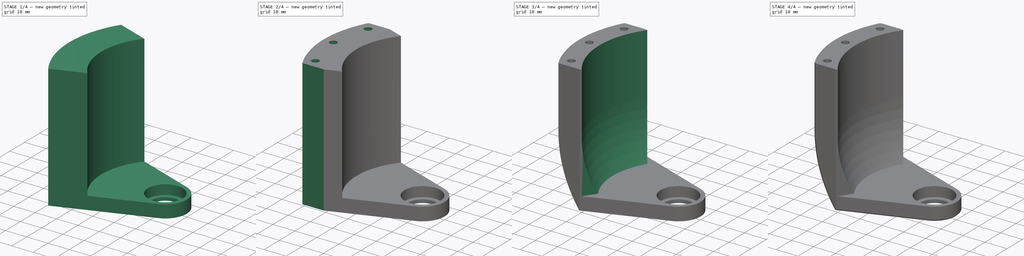
[diagram: build sequence overview — one tinted view per stage of 4, left to right]
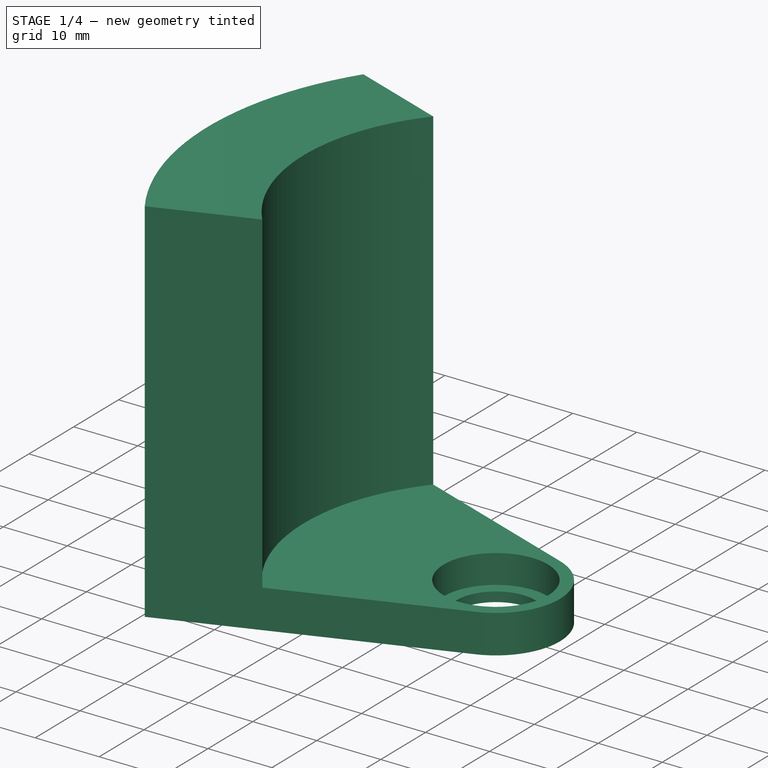
[diagram: stage 1 of 4 — iso view after this stage's code; geometry added in this stage tinted green]
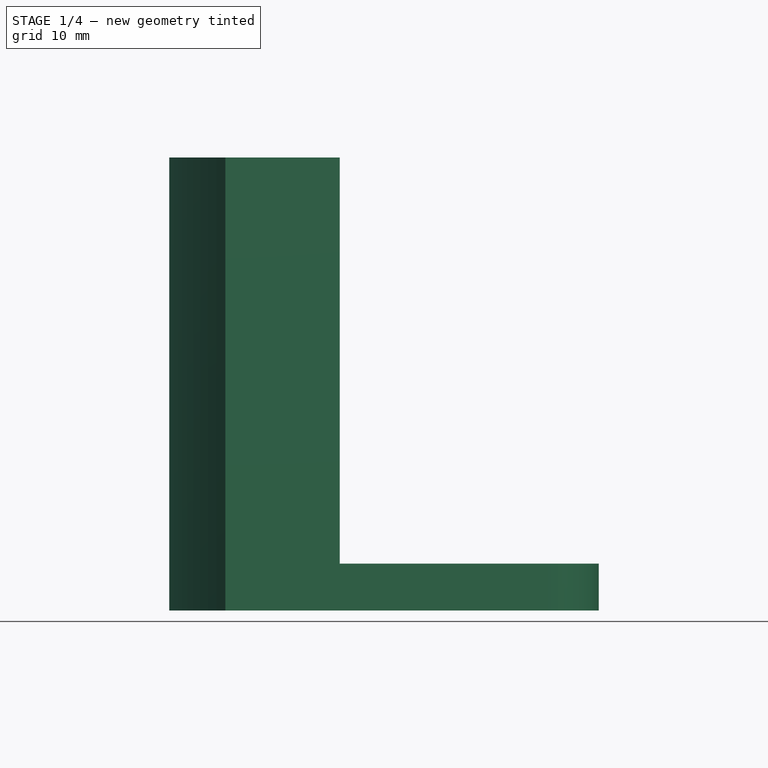
[diagram: stage 1 of 4 — front view after this stage's code; geometry added in this stage tinted green]
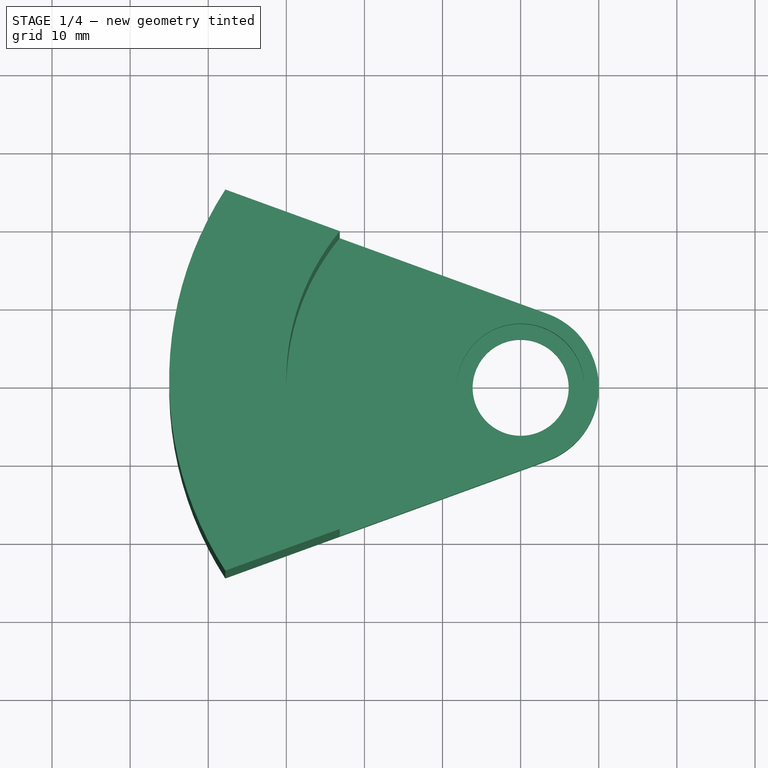
[diagram: stage 1 of 4 — top view after this stage's code; geometry added in this stage tinted green]
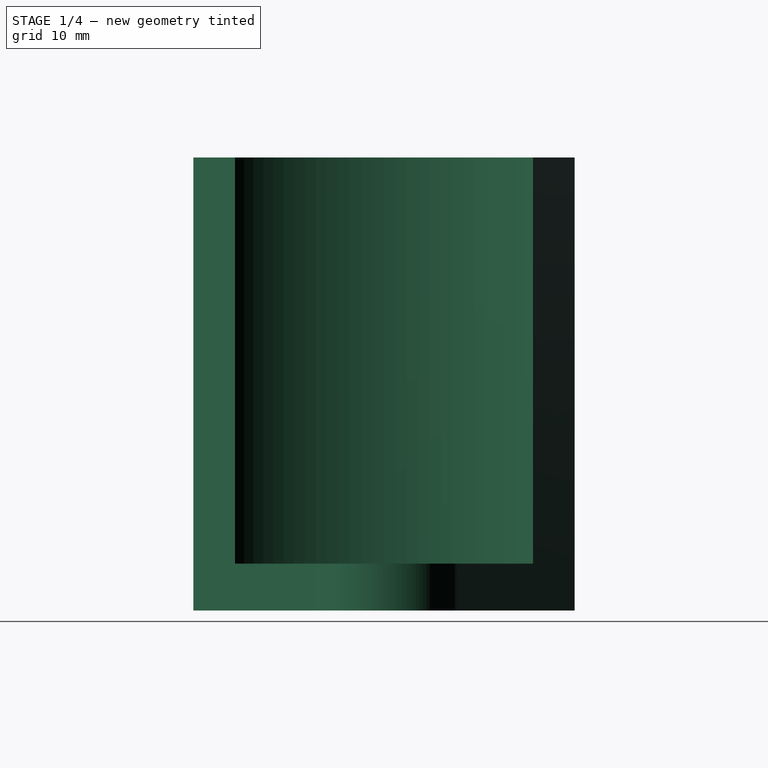
[diagram: stage 1 of 4 — right view after this stage's code; geometry added in this stage tinted green]
FCSTD DOCUMENT  (FreeCAD 1.0R38806 (Git))
Label: Shoulder_Joint_Brace
License: All rights reserved
LicenseURL: https://en.wikipedia.org/wiki/All_rights_reserved
objects: Sketcher::SketchObject×10, PartDesign::Pocket×6, PartDesign::Chamfer×3, PartDesign::Pad×2, PartDesign::Groove×2, PartDesign::Fillet×1, PartDesign::Body×1
note: 63 computed .brp shape members not serialized (recipe doc carries the construction recipe); baked Part::Feature solids carry a one-line shape summary decoded from their .brp

FEATURE [Sketcher::SketchObject] Sketch  label="sk_base"
  ArcFitTolerance = 1e-06
  AttachmentSupport = -> [XY_Plane]
  FullyConstrained = true
  MakeInternals = false
  MapMode = 5
  sketch-geometry (4):
    g0: LineSegment StartX=-37.8086 StartY=24.403 StartZ=0 EndX=3.4202 EndY=9.39693 EndZ=0
    g1: ArcOfCircle CenterX=0 CenterY=0 CenterZ=0 NormalX=0 NormalY=0 NormalZ=1 AngleXU=0 Radius=10 StartAngle=5.06145 EndAngle=7.50492
    g2: LineSegment StartX=3.4202 StartY=-9.39693 StartZ=0 EndX=-37.8086 EndY=-24.403 EndZ=0
    g3: ArcOfCircle CenterX=0 CenterY=0 CenterZ=0 NormalX=0 NormalY=0 NormalZ=1 AngleXU=0 Radius=45 StartAngle=2.56843 EndAngle=3.71475
  constraints (10):
    c: Tangent(g0,g1) = 1.5708
    c: Tangent(g1,g2) = 1.5708
    c: Coincident(g1,g-1)
    c: Coincident(g0,g3)
    c: Coincident(g3,g2)
    c: Vertical(g0,g2)
    c: Radius(g1) = 10  'rad_inner'
    c: Radius(g3) = 45  'rad_outer'
    c: Coincident(g3,g1)
    c: Angle(g0,g-1) = 0.349066  'angle'
FEATURE [PartDesign::Pad] Pad  label="pad_base"
  Direction = (0,0,1)
  Length = 6
  Length2 = 10
  Profile = -> Sketch
  ReferenceAxis = -> Sketch [N_Axis]
  Refine = true
  Suppressed = false
  Type = 0
FEATURE [Sketcher::SketchObject] Sketch001  label="sk_bearing_mount_inner"
  ArcFitTolerance = 1e-06
  AttachmentSupport = -> [XY_Plane]
  FullyConstrained = true
  MakeInternals = false
  MapMode = 5
  sketch-geometry (1):
    g0: Circle CenterX=0 CenterY=0 CenterZ=0 NormalX=0 NormalY=0 NormalZ=1 AngleXU=0 Radius=6.15
  constraints (2):
    c: Coincident(g0,g-1)
    c: Radius(g0) = 6.15  'rad_ball_bearing'
FEATURE [Sketcher::SketchObject] Sketch002  label="sk_bearing_mount_outer"
  ArcFitTolerance = 1e-06
  AttachmentOffset = pos=(0,0,6) rot=(0,0,1;0rad)
  AttachmentSupport = -> [XY_Plane]
  FullyConstrained = true
  MakeInternals = false
  MapMode = 5
  Placement = pos=(0,0,6) rot=(0,0,1;0rad)
  expr: .AttachmentOffset.Base.z = <<pad_base>>.Length
  sketch-geometry (1):
    g0: Circle CenterX=0 CenterY=0 CenterZ=0 NormalX=0 NormalY=0 NormalZ=1 AngleXU=0 Radius=8.15
  constraints (2):
    c: Coincident(g0,g-1)
    c: Radius(g0) = 8.15  'rad_bearing'
FEATURE [PartDesign::Pocket] Pocket001  label="pocket_bearing_mount_outer"
  BaseFeature = -> Pad
  Direction = (0,0,-1)
  Length = 4.5
  Length2 = 5
  Profile = -> Sketch002
  ReferenceAxis = -> Sketch002 [N_Axis]
  Refine = true
  Suppressed = false
  Type = 0
FEATURE [PartDesign::Pocket] Pocket  label="pocket_bearing_mount_inner"
  BaseFeature = -> Pocket001
  Direction = (0,0,-1)
  Length = 5
  Length2 = 5
  Profile = -> Sketch001
  ReferenceAxis = -> Sketch001 [N_Axis]
  Refine = true
  Reversed = true
  Suppressed = false
  Type = 1
FEATURE [Sketcher::SketchObject] Sketch003  label="sk_brace"
  ArcFitTolerance = 1e-06
  AttachmentOffset = pos=(0,0,6) rot=(0,0,1;0rad)
  AttachmentSupport = -> [XY_Plane]
  ExternalGeometry = -> [Sketch]
  FullyConstrained = true
  MakeInternals = false
  MapMode = 5
  Placement = pos=(0,0,6) rot=(0,0,1;0rad)
  expr: .AttachmentOffset.Base.z = <<pad_base>>.Length
  sketch-geometry (4):
    g0: ArcOfCircle CenterX=0 CenterY=0 CenterZ=0 NormalX=0 NormalY=0 NormalZ=1 AngleXU=0 Radius=30 StartAngle=2.45269 EndAngle=3.8305
    g1: ArcOfCircle CenterX=0 CenterY=0 CenterZ=0 NormalX=0 NormalY=0 NormalZ=1 AngleXU=0 Radius=45 StartAngle=2.56843 EndAngle=3.71475
    g2: LineSegment StartX=-37.8086 StartY=24.403 StartZ=0 EndX=-23.1583 EndY=19.0707 EndZ=0
    g3: LineSegment StartX=-23.1583 StartY=-19.0707 StartZ=0 EndX=-37.8086 EndY=-24.403 EndZ=0
  constraints (11):
    c: Coincident(g0,g-1)
    c: Radius(g0) = 30  'rad_inner'
    c: Coincident(g2,g1)
    c: Coincident(g2,g0)
    c: Coincident(g3,g0)
    c: Coincident(g3,g1)
    c: Vertical(g1,g1)
    c: Vertical(g0,g0)
    c: Coincident(g1,g0)
    c: Coincident(g1,g-3)
    c: PointOnObject(g0,g-3)
FEATURE [PartDesign::Pad] Pad001  label="pad_brace"
  BaseFeature = -> Pocket
  Direction = (0,0,1)
  Length = 52
  Length2 = 10
  Profile = -> Sketch003
  ReferenceAxis = -> Sketch003 [N_Axis]
  Refine = true
  Suppressed = false
  Type = 0
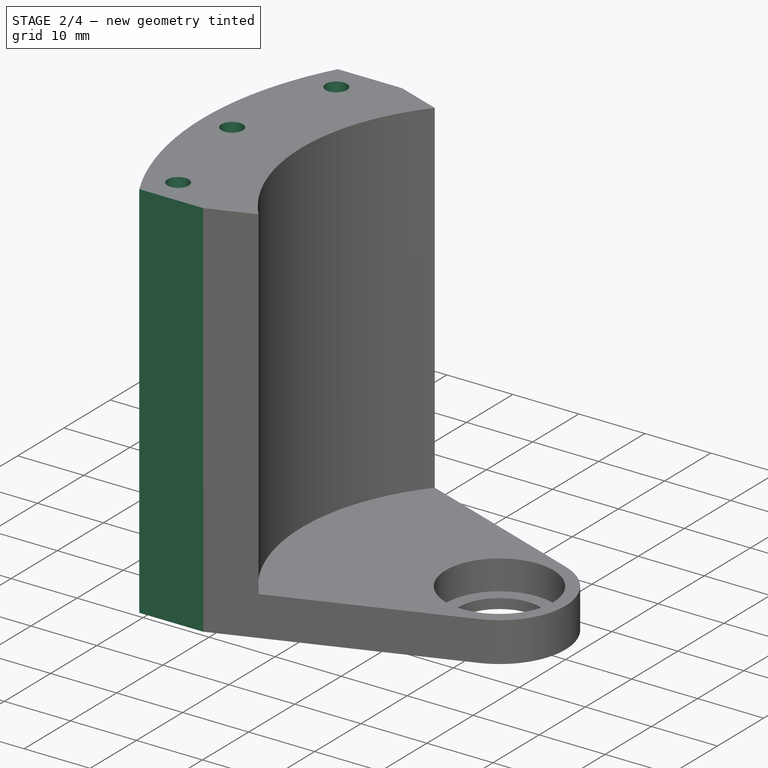
[diagram: stage 2 of 4 — iso view after this stage's code; geometry added in this stage tinted green]
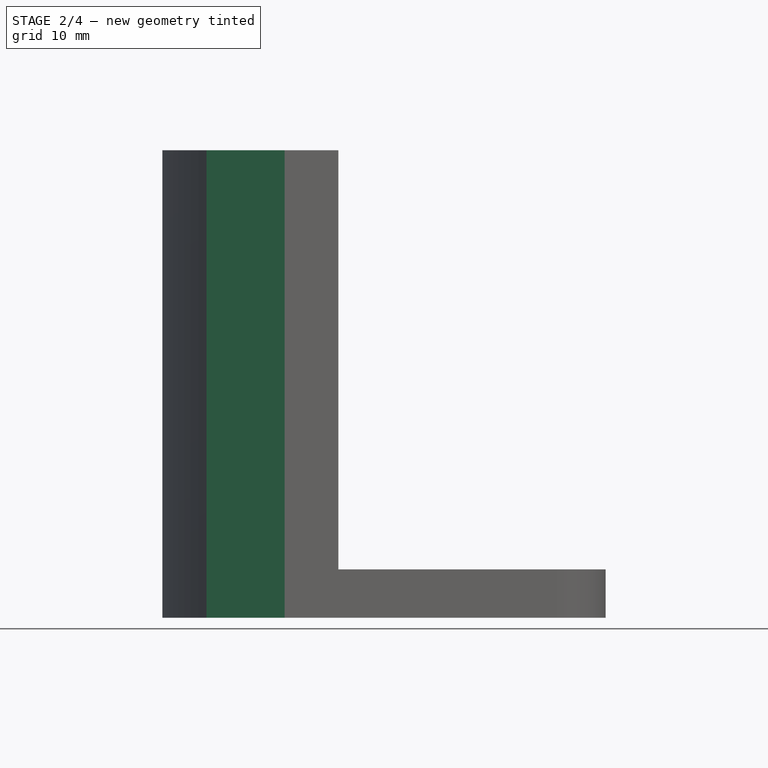
[diagram: stage 2 of 4 — front view after this stage's code; geometry added in this stage tinted green]
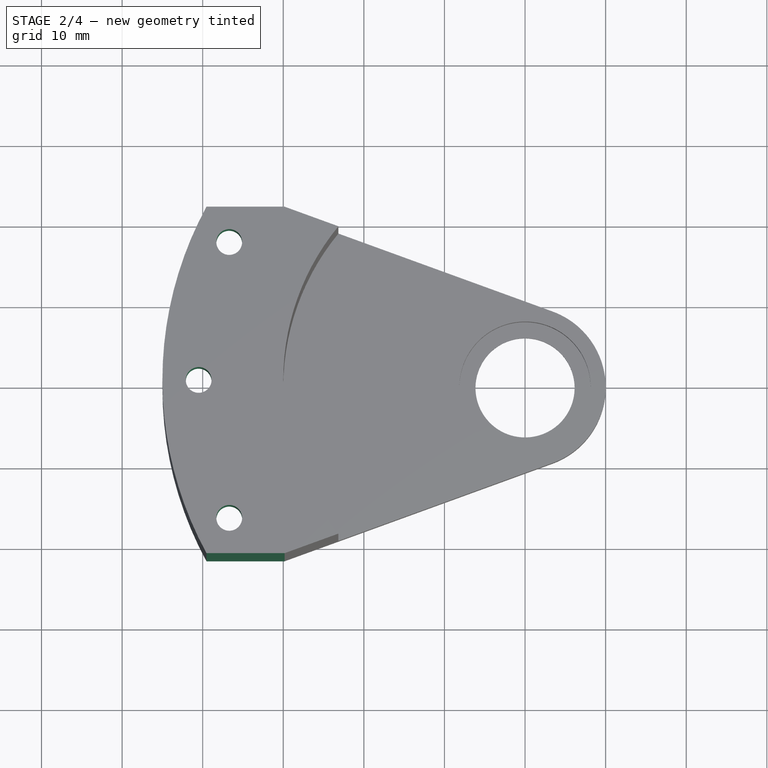
[diagram: stage 2 of 4 — top view after this stage's code; geometry added in this stage tinted green]
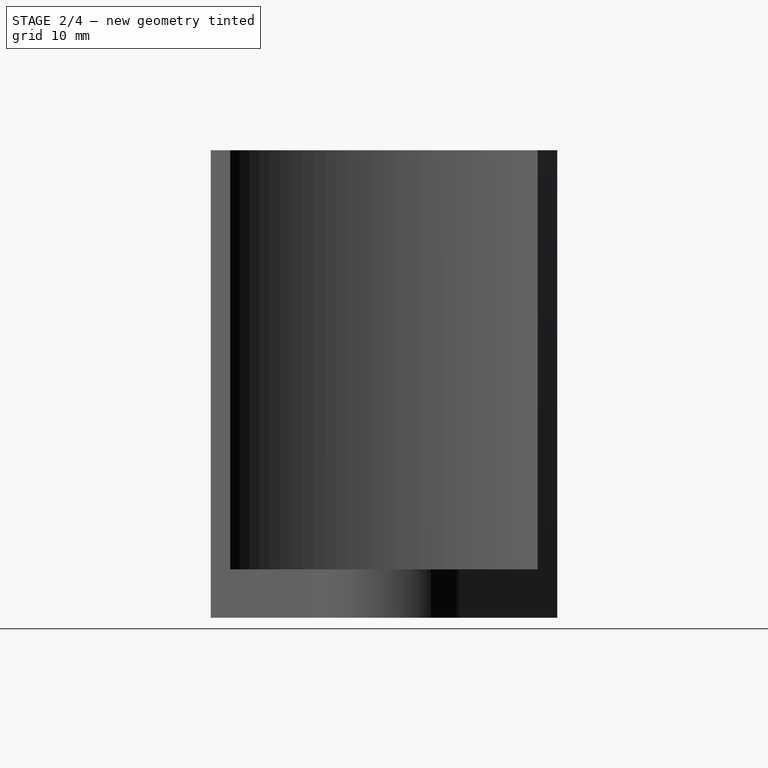
[diagram: stage 2 of 4 — right view after this stage's code; geometry added in this stage tinted green]
FEATURE [Sketcher::SketchObject] Sketch004  label="sk_screwholes_brace"
  ArcFitTolerance = 1e-06
  AttachmentSupport = -> [XY_Plane]
  FullyConstrained = true
  MakeInternals = false
  MapMode = 5
  sketch-geometry (5):
    g0: Circle [constr] CenterX=0 CenterY=0 CenterZ=0 NormalX=0 NormalY=0 NormalZ=1 AngleXU=0 Radius=40.5
    g1: Circle CenterX=-40.5 CenterY=0 CenterZ=0 NormalX=0 NormalY=0 NormalZ=1 AngleXU=0 Radius=1.6
    g2: Circle CenterX=-36.7055 CenterY=17.116 CenterZ=0 NormalX=0 NormalY=0 NormalZ=1 AngleXU=0 Radius=1.6
    g3: Circle CenterX=-36.7055 CenterY=-17.116 CenterZ=0 NormalX=0 NormalY=0 NormalZ=1 AngleXU=0 Radius=1.6
    g4: LineSegment [constr] StartX=-36.7055 StartY=17.116 StartZ=0 EndX=0 EndY=0 EndZ=0
  constraints (13):
    c: Coincident(g0,g-1)
    c: Radius(g0) = 40.5  'rad_helper'
    c: PointOnObject(g1,g0)
    c: PointOnObject(g2,g0)
    c: PointOnObject(g3,g0)
    c: Coincident(g4,g2)
    c: Coincident(g4,g0)
    c: Equal(g1,g2)
    c: Equal(g1,g3)
    c: Vertical(g3,g2)
    c: PointOnObject(g1,g-1)
    c: Radius(g1) = 1.6  'rad_screwhole'
    c: Angle(g4,g-1) = 0.436332  'angle'
FEATURE [PartDesign::Pocket] Pocket002  label="pocket_screwholes_brace"
  BaseFeature = -> Pad001
  Direction = (0,0,-1)
  Length = 5
  Length2 = 5
  Profile = -> Sketch004
  ReferenceAxis = -> Sketch004 [N_Axis]
  Refine = true
  Reversed = true
  Suppressed = false
  Type = 1
FEATURE [Sketcher::SketchObject] Sketch005  label="sk_screwheads_brace"
  ArcFitTolerance = 1e-06
  AttachmentSupport = -> [XY_Plane]
  ExternalGeometry = -> [Sketch004]
  FullyConstrained = true
  MakeInternals = false
  MapMode = 5
  sketch-geometry (3):
    g0: Circle CenterX=-36.7055 CenterY=17.116 CenterZ=0 NormalX=0 NormalY=0 NormalZ=1 AngleXU=0 Radius=2.85
    g1: Circle CenterX=-40.5 CenterY=0 CenterZ=0 NormalX=0 NormalY=0 NormalZ=1 AngleXU=0 Radius=2.85
    g2: Circle CenterX=-36.7055 CenterY=-17.116 CenterZ=0 NormalX=0 NormalY=0 NormalZ=1 AngleXU=0 Radius=2.85
  constraints (6):
    c: Coincident(g0,g-3)
    c: Coincident(g2,g-5)
    c: Radius(g1) = 2.85  'rad_screwhead'
    c: Equal(g1,g2)
    c: Equal(g1,g0)
    c: Coincident(g1,g-4)
FEATURE [PartDesign::Pocket] Pocket003  label="pocket_screwheads_brace"
  BaseFeature = -> Pocket002
  Direction = (0,0,-1)
  Length = 46
  Length2 = 5
  Profile = -> Sketch005
  ReferenceAxis = -> Sketch005 [N_Axis]
  Refine = true
  Reversed = true
  Suppressed = false
  Type = 0
  expr: Length = <<pad_base>>.Length + <<pad_brace>>.Length - 12 mm
FEATURE [Sketcher::SketchObject] Sketch006  label="sk_flat_sides"
  ArcFitTolerance = 1e-06
  AttachmentSupport = -> [XY_Plane]
  ExternalGeometry = -> [Sketch]
  FullyConstrained = true
  MakeInternals = false
  MapMode = 5
  sketch-geometry (8):
    g0: LineSegment StartX=-29.8327 StartY=21.5 StartZ=0 EndX=-29.8327 EndY=25.5 EndZ=0
    g1: LineSegment StartX=-29.8327 StartY=25.5 StartZ=0 EndX=-39.8327 EndY=25.5 EndZ=0
    g2: LineSegment StartX=-39.8327 StartY=25.5 StartZ=0 EndX=-39.8327 EndY=21.5 EndZ=0
    g3: LineSegment StartX=-39.8327 StartY=21.5 StartZ=0 EndX=-29.8327 EndY=21.5 EndZ=0
    g4: LineSegment StartX=-39.8327 StartY=-21.5 StartZ=0 EndX=-39.8327 EndY=-25.5 EndZ=0
    g5: LineSegment StartX=-39.8327 StartY=-25.5 StartZ=0 EndX=-29.8327 EndY=-25.5 EndZ=0
    g6: LineSegment StartX=-29.8327 StartY=-25.5 StartZ=0 EndX=-29.8327 EndY=-21.5 EndZ=0
    g7: LineSegment StartX=-29.8327 StartY=-21.5 StartZ=0 EndX=-39.8327 EndY=-21.5 EndZ=0
  constraints (22):
    c: Coincident(g0,g1)
    c: Coincident(g1,g2)
    c: Coincident(g2,g3)
    c: Coincident(g3,g0)
    c: Vertical(g0)
    c: Vertical(g2)
    c: Horizontal(g1)
    c: Coincident(g4,g5)
    c: Coincident(g5,g6)
    c: Coincident(g6,g7)
    c: Coincident(g7,g4)
    c: Vertical(g4)
    c: Vertical(g6)
    c: Horizontal(g5)
    c: Horizontal(g7)
    c: Symmetric(g4,g2,g-1)
    c: Symmetric(g0,g5,g-1)
    c: Horizontal(g3)
    c: DistanceY(g2,g2) = 4  'height'
    c: DistanceX(g1,g1) = 10  'width'
    c: DistanceY(g4,g2) = 43  'distance_height'
    c: PointOnObject(g0,g-3)
FEATURE [PartDesign::Pocket] Pocket004  label="pocket_flat_sides"
  BaseFeature = -> Pocket003
  Direction = (0,0,-1)
  Length = 5
  Length2 = 5
  Profile = -> Sketch006
  ReferenceAxis = -> Sketch006 [N_Axis]
  Refine = true
  Reversed = true
  Suppressed = false
  Type = 1
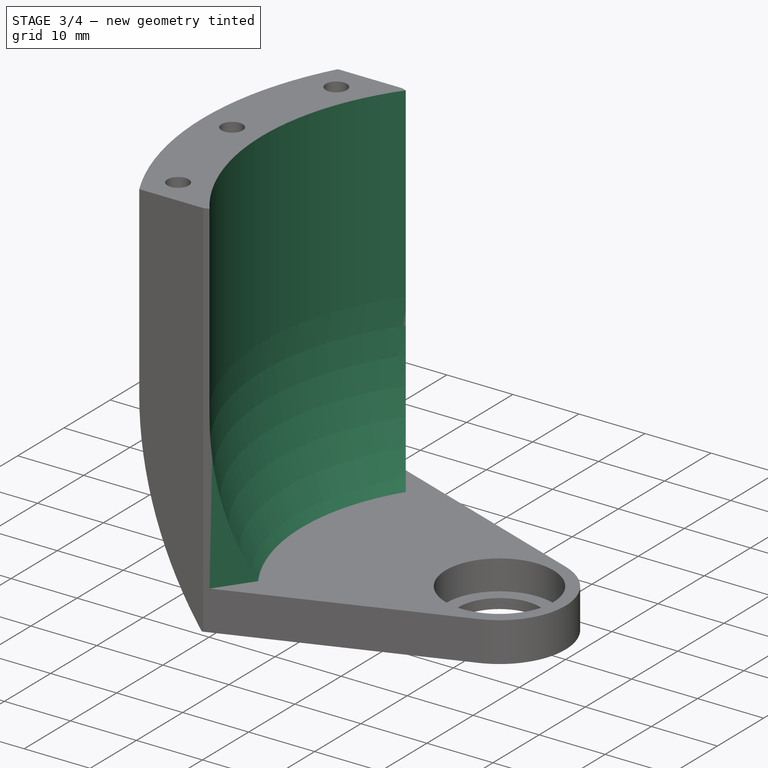
[diagram: stage 3 of 4 — iso view after this stage's code; geometry added in this stage tinted green]
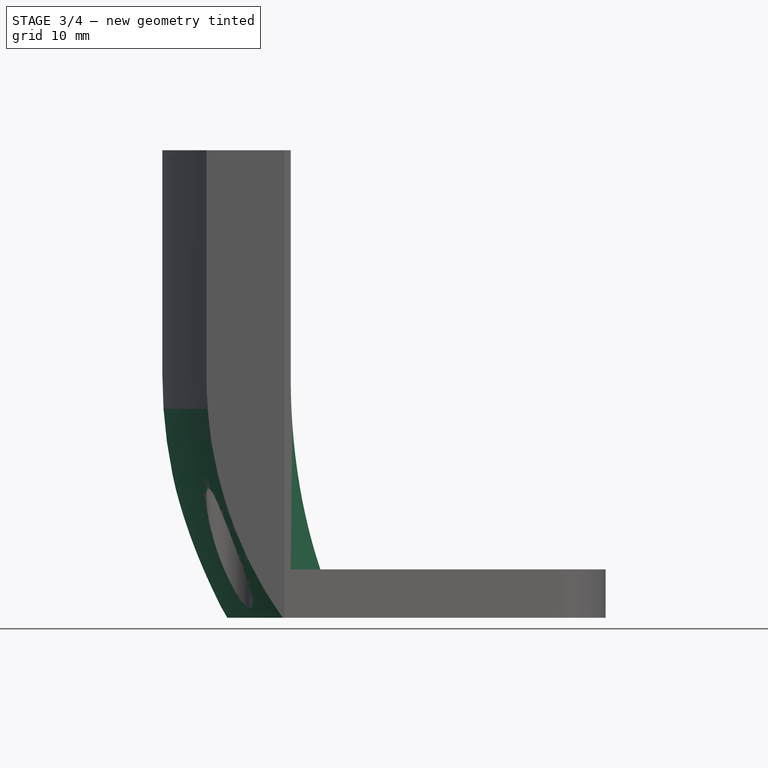
[diagram: stage 3 of 4 — front view after this stage's code; geometry added in this stage tinted green]
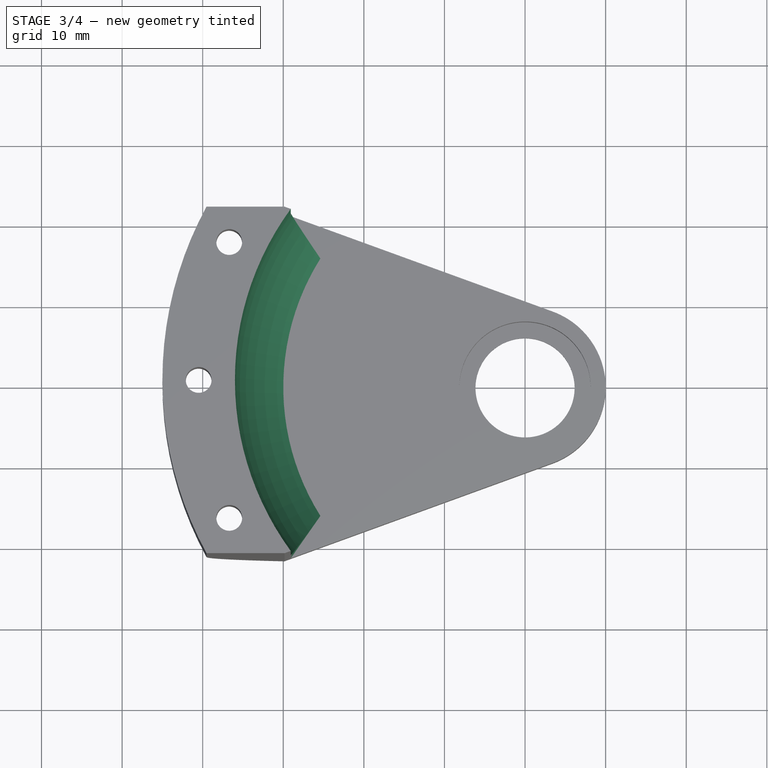
[diagram: stage 3 of 4 — top view after this stage's code; geometry added in this stage tinted green]
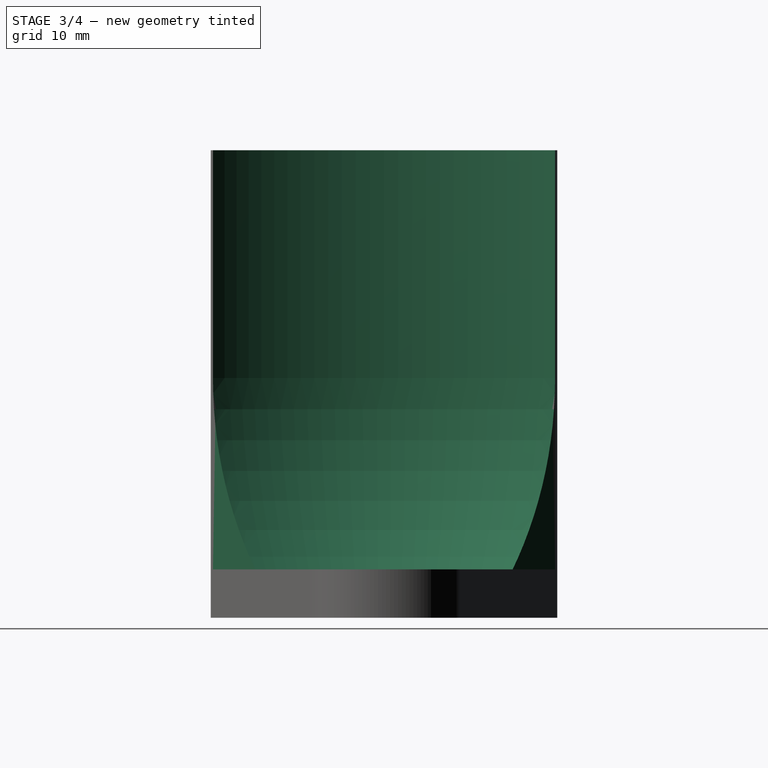
[diagram: stage 3 of 4 — right view after this stage's code; geometry added in this stage tinted green]
FEATURE [Sketcher::SketchObject] Sketch007  label="sk_curve_inner"
  ArcFitTolerance = 1e-06
  AttachmentSupport = -> [XZ_Plane]
  FullyConstrained = true
  MakeInternals = false
  MapMode = 5
  Placement = pos=(0,0,0) rot=(1,0,0;1.5708rad)
  expr: .Constraints.height = <<pad_brace>>.Length
  expr: .Constraints.position_height = <<pad_base>>.Length
  expr: .Constraints.rad_inner = <<sk_brace>>.Constraints.rad_inner
  expr: .Constraints.width = <<sk_notch_inner>>.Constraints.rad_inner - <<sk_brace>>.Constraints.rad_inner
  sketch-geometry (4):
    g0: LineSegment StartX=-30 StartY=58 StartZ=0 EndX=-36 EndY=58 EndZ=0
    g1: LineSegment StartX=-36 StartY=58 StartZ=0 EndX=-36 EndY=29.7487 EndZ=0
    g2: ArcOfCircle CenterX=14 CenterY=29.7487 CenterZ=0 NormalX=0 NormalY=0 NormalZ=1 AngleXU=0 Radius=50 StartAngle=3.14159 EndAngle=3.63653
    g3: LineSegment StartX=-30 StartY=6 StartZ=0 EndX=-30 EndY=58 EndZ=0
  constraints (12):
    c: Horizontal(g0)
    c: Coincident(g0,g1)
    c: Vertical(g1)
    c: Tangent(g1,g2) = -1.5708
    c: Coincident(g2,g3)
    c: Coincident(g3,g0)
    c: Vertical(g3)
    c: Distance(g2,g-1) = 6  'position_height'
    c: DistanceX(g2,g-1) = 30  'rad_inner'
    c: DistanceY(g3,g3) = 52  'height'
    c: DistanceX(g0,g0) = 6  'width'
    c: Radius(g2) = 50  'rad_curve'
FEATURE [Sketcher::SketchObject] Sketch008  label="sk_notch_inner"
  ArcFitTolerance = 1e-06
  AttachmentOffset = pos=(0,0,6) rot=(0,0,1;0rad)
  AttachmentSupport = -> [XY_Plane]
  ExternalGeometry = -> [Sketch]
  FullyConstrained = true
  MakeInternals = false
  MapMode = 5
  Placement = pos=(0,0,6) rot=(0,0,1;0rad)
  expr: .AttachmentOffset.Base.z = <<pad_base>>.Length
  sketch-geometry (7):
    g0: LineSegment StartX=-29.0774 StartY=21.2251 StartZ=0 EndX=-24.5261 EndY=14.7251 EndZ=0
    g1: LineSegment StartX=-24.5261 StartY=14.7251 StartZ=0 EndX=-22.9694 EndY=19.002 EndZ=0
    g2: LineSegment StartX=-29.0774 StartY=21.2251 StartZ=0 EndX=-22.9694 EndY=19.002 EndZ=0
    g3: Circle [constr] CenterX=0 CenterY=0 CenterZ=0 NormalX=0 NormalY=0 NormalZ=1 AngleXU=0 Radius=36
    g4: LineSegment StartX=-29.0774 StartY=-21.2251 StartZ=0 EndX=-22.9694 EndY=-19.002 EndZ=0
    g5: LineSegment StartX=-22.9694 StartY=-19.002 StartZ=0 EndX=-24.5261 EndY=-14.7251 EndZ=0
    g6: LineSegment StartX=-29.0774 StartY=-21.2251 StartZ=0 EndX=-24.5261 EndY=-14.7251 EndZ=0
  constraints (18):
    c: PointOnObject(g0,g-3)
    c: Coincident(g1,g0)
    c: PointOnObject(g1,g-3)
    c: Coincident(g2,g1)
    c: Angle(g0,g2) = 0.610865  'angle'
    c: Distance(g2,g2) = 6.5  'length_adjacent'
    c: Perpendicular(g2,g1)
    c: Coincident(g3,g-1)
    c: Radius(g3) = 36  'rad_inner'
    c: Coincident(g0,g2)
    c: PointOnObject(g0,g3)
    c: PointOnObject(g4,g3)
    c: Coincident(g5,g4)
    c: Coincident(g6,g4)
    c: Coincident(g6,g5)
    c: Symmetric(g4,g1,g-1)
    c: Vertical(g4,g0)
    c: Symmetric(g5,g0,g-1)
FEATURE [PartDesign::Pocket] Pocket005  label="pocket_notch_inner"
  BaseFeature = -> Pocket004
  Direction = (0,0,-1)
  Length = 5
  Length2 = 5
  Profile = -> Sketch008
  ReferenceAxis = -> Sketch008 [N_Axis]
  Refine = true
  Reversed = true
  Suppressed = false
  Type = 1
FEATURE [PartDesign::Groove] Groove  label="groove_curve_inner"
  Angle = 90
  Angle2 = 60
  Axis = (0,2e-16,1)
  Base = (0,0,0)
  BaseFeature = -> Pocket005
  Midplane = true
  Profile = -> Sketch007
  ReferenceAxis = -> Sketch007 [V_Axis]
  Refine = true
  Suppressed = false
  Type = 0
FEATURE [Sketcher::SketchObject] Sketch009  label="sk_curve_outer"
  ArcFitTolerance = 1e-06
  AttachmentSupport = -> [XZ_Plane]
  FullyConstrained = true
  MakeInternals = false
  MapMode = 5
  Placement = pos=(0,0,0) rot=(1,0,0;1.5708rad)
  expr: .Constraints.position = <<sk_base>>.Constraints.rad_outer
  sketch-geometry (3):
    g0: ArcOfCircle CenterX=15 CenterY=30 CenterZ=0 NormalX=0 NormalY=0 NormalZ=1 AngleXU=0 Radius=60 StartAngle=3.14159 EndAngle=3.66519
    g1: LineSegment StartX=-45 StartY=30 StartZ=0 EndX=-45 EndY=0 EndZ=0
    g2: LineSegment StartX=-45 StartY=0 StartZ=0 EndX=-36.9615 EndY=1.78e-14 EndZ=0
  constraints (9):
    c: PointOnObject(g0,g-1)
    c: Radius(g0) = 60  'rad_curve'
    c: Tangent(g1,g0) = -1.5708
    c: PointOnObject(g1,g-1)
    c: Vertical(g1)
    c: Coincident(g2,g1)
    c: Coincident(g2,g0)
    c: DistanceY(g1,g1) = 30  'height'
    c: DistanceX(g1,g-1) = 45  'position'
FEATURE [PartDesign::Groove] Groove001  label="groove_curve_outer"
  Angle = 90
  Angle2 = 60
  Axis = (0,2e-16,1)
  Base = (0,0,0)
  BaseFeature = -> Groove
  Midplane = true
  Profile = -> Sketch009
  ReferenceAxis = -> Sketch009 [V_Axis]
  Refine = true
  Suppressed = false
  Type = 0
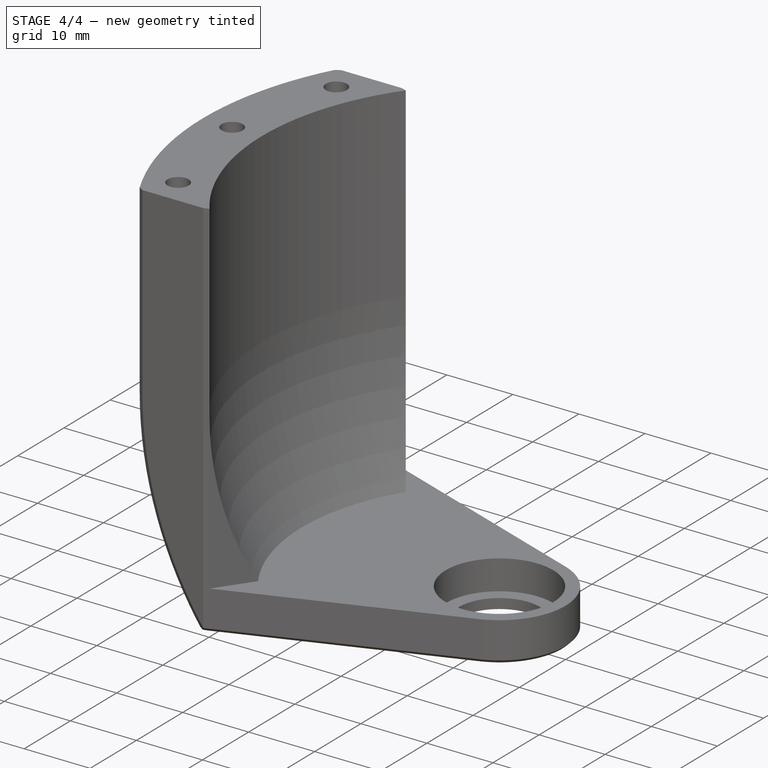
[diagram: stage 4 of 4 — iso view after this stage's code; geometry added in this stage tinted green]
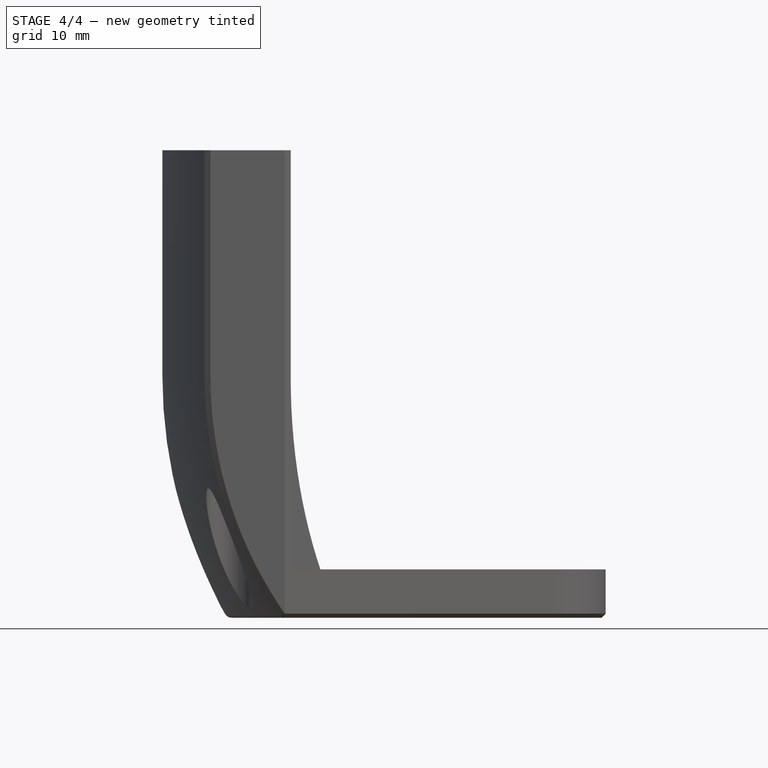
[diagram: stage 4 of 4 — front view after this stage's code; geometry added in this stage tinted green]
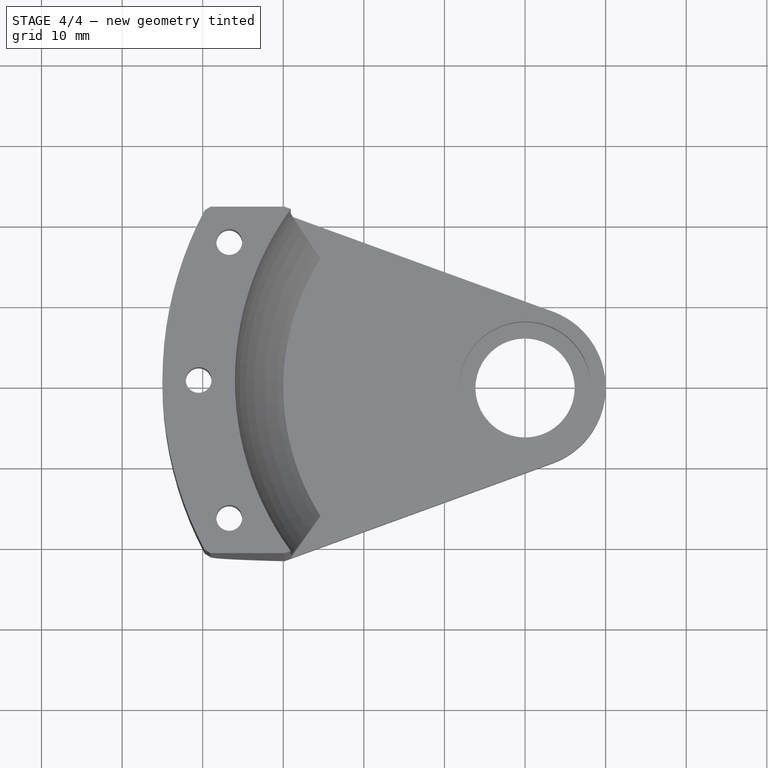
[diagram: stage 4 of 4 — top view after this stage's code; geometry added in this stage tinted green]
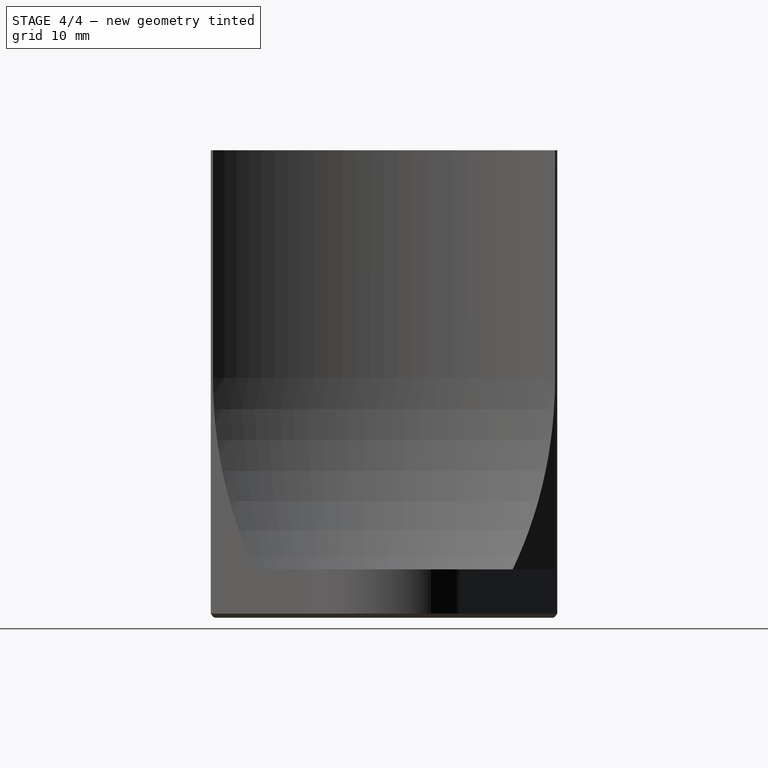
[diagram: stage 4 of 4 — right view after this stage's code; geometry added in this stage tinted green]
FEATURE [PartDesign::Chamfer] Chamfer  label="chamfer_screwheads"
  Angle = 45
  Base = -> Groove001 [Edge43,Edge45,Edge47]
  BaseFeature = -> Groove001
  ChamferType = 2
  FlipDirection = false
  Refine = true
  Size = 1.2
  Size2 = 1
  SupportTransform = false
  Suppressed = false
  UseAllEdges = false
FEATURE [PartDesign::Chamfer] Chamfer002  label="chamfer_outer_curve"
  Angle = 45
  Base = -> Chamfer [Edge31,Edge30]
  BaseFeature = -> Chamfer
  ChamferType = 0
  FlipDirection = false
  Refine = true
  Size = 0.5
  Size2 = 1
  SupportTransform = false
  Suppressed = false
  UseAllEdges = false
FEATURE [PartDesign::Chamfer] Chamfer001  label="chamfer_bottom"
  Angle = 45
  Base = -> Chamfer002 [Edge17]
  BaseFeature = -> Chamfer002
  ChamferType = 0
  FlipDirection = false
  Refine = true
  Size = 0.5
  Size2 = 1
  SupportTransform = false
  Suppressed = false
  UseAllEdges = false
FEATURE [PartDesign::Fillet] Fillet  label="fillet_bottom_outer_curve"
  Base = -> Chamfer001 [Edge40]
  BaseFeature = -> Chamfer001
  Radius = 1
  Refine = true
  SupportTransform = false
  Suppressed = false
  UseAllEdges = false
FEATURE [PartDesign::Body] Body  label="Shoulder_Joint_Brace"
  AllowCompound = false
  Group = -> [Sketch,Pad,Sketch001,Sketch002,Pocket001,Pocket,Sketch003,Pad001,Sketch004,Pocket002,Sketch005,Pocket003,Sketch006,Pocket004,Sketch007,Sketch008,Pocket005,Groove,Sketch009,Groove001,Chamfer,Chamfer002,Chamfer001,Fillet]
  Origin = -> Origin
  Tip = -> Fillet
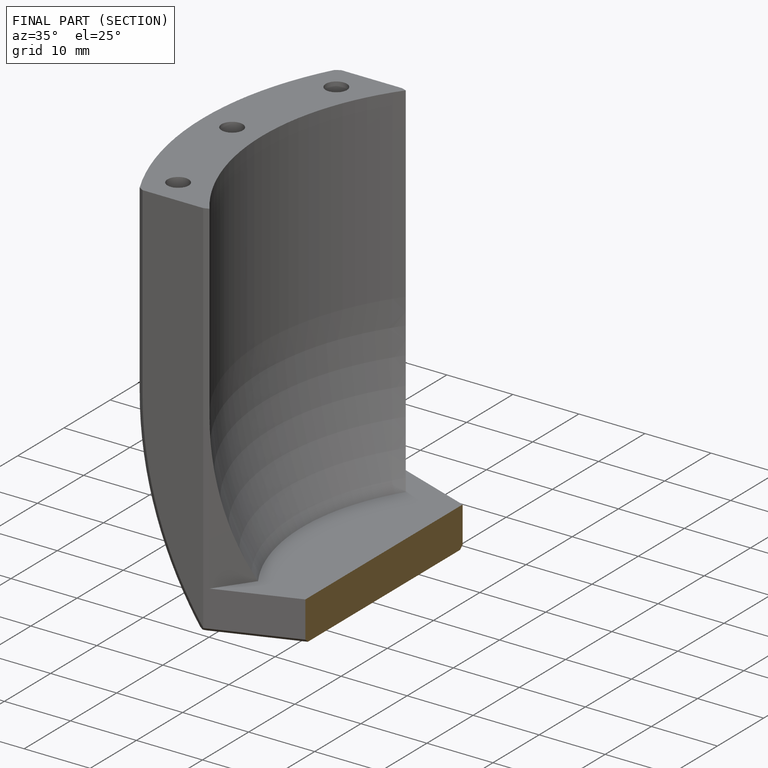
[diagram: finished part — half-section view (interior)]
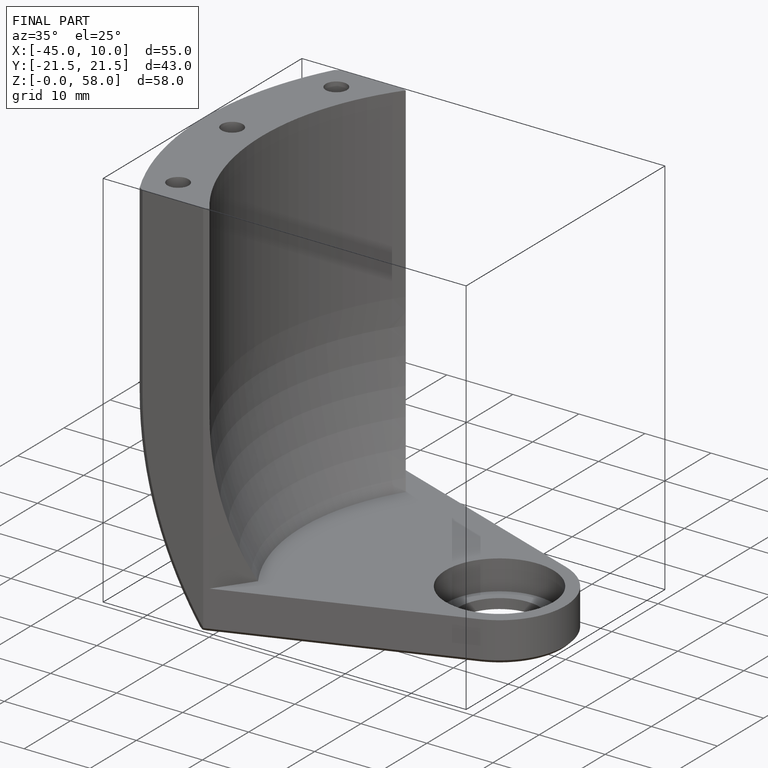
[diagram: finished part — iso view with bounding-box wireframe]
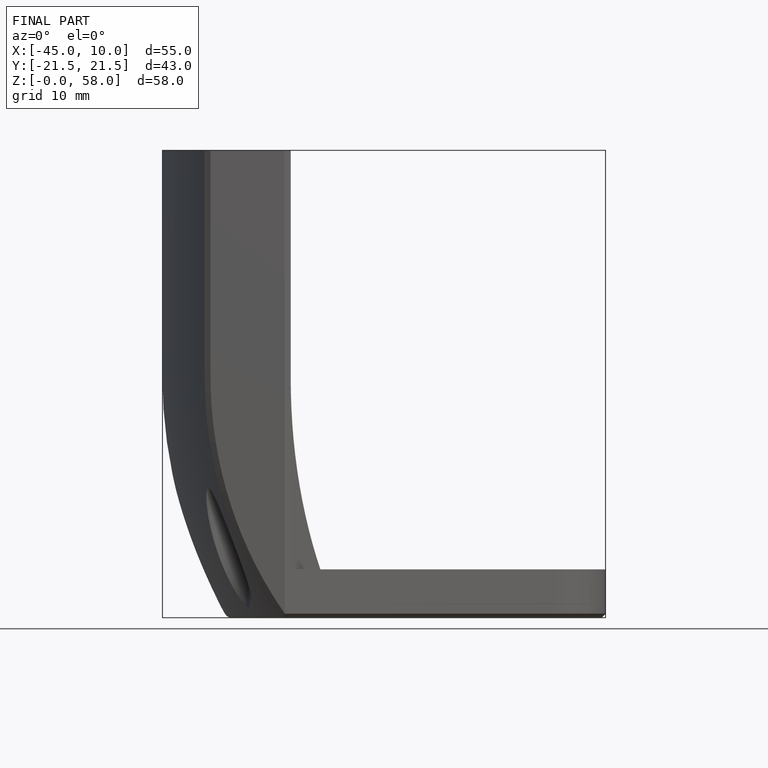
[diagram: finished part — front view with bounding-box wireframe]
